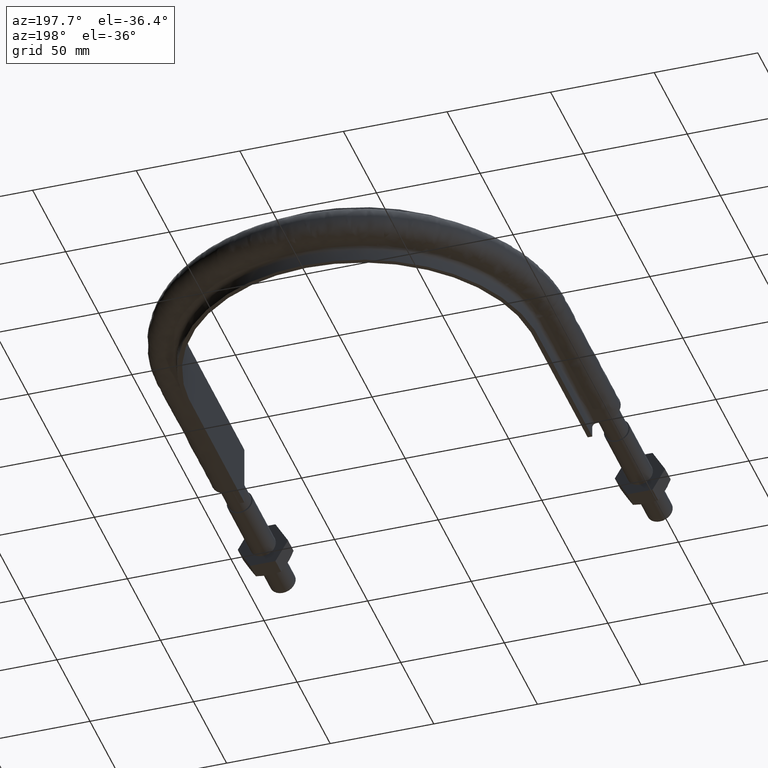
[diagram: clean part render]
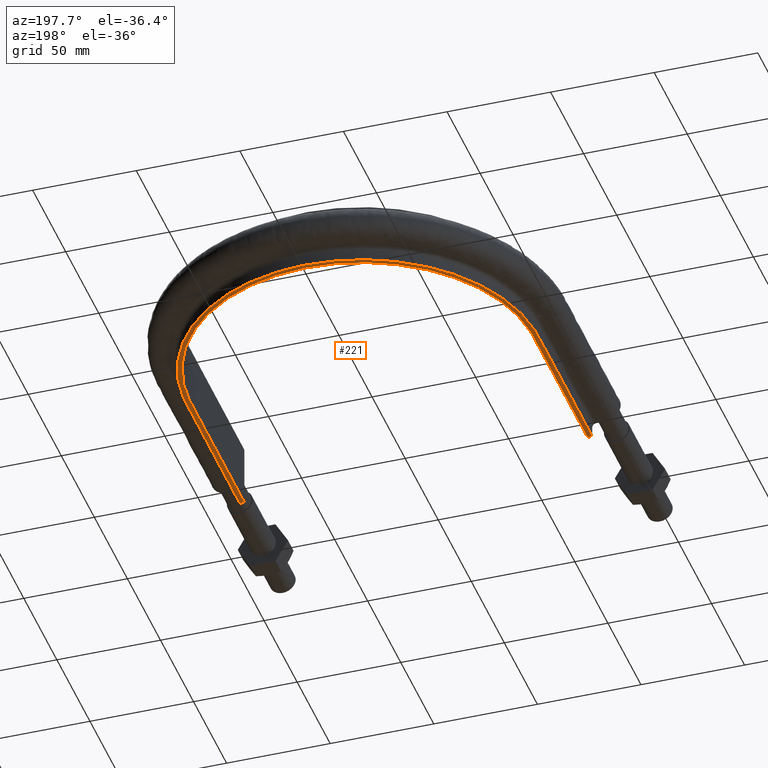
[diagram: same view with one face highlighted and labeled with its STEP entity id]
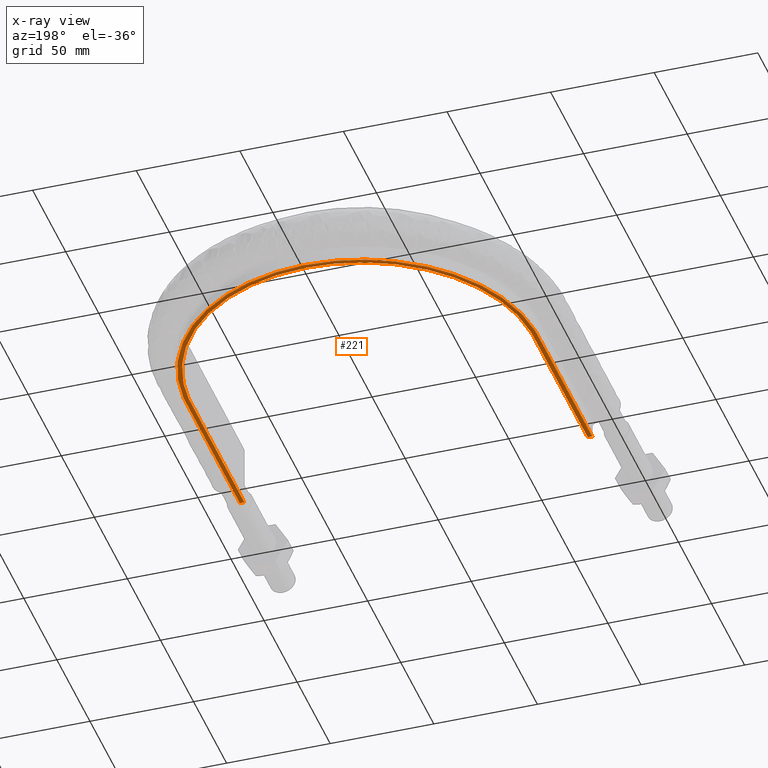
[diagram: x-ray of the same camera — body ghosted, the highlighted face saturated]
A machine part, auxiliary view. The second image highlights one B-rep face of the part: STEP entity #221.
The next image is the same camera in x-ray: the body ghosted, the highlighted face saturated — about 0% of this face is hidden behind the body in this view.
In plain terms, the highlighted planar face has unit normal (0, 0, 1).
Its self-contained STEP definition (entity closure, byte-faithful):
#221 = ADVANCED_FACE( '', ( #266 ), #267, .F. );
#266 = FACE_OUTER_BOUND( '', #368, .T. );
#267 = PLANE( '', #369 );
#368 = EDGE_LOOP( '', ( #1379, #1380, #1381, #1382 ) );
#369 = AXIS2_PLACEMENT_3D( '', #1383, #1384, #1385 );
#1379 = ORIENTED_EDGE( '', *, *, #1663, .F. );
#1380 = ORIENTED_EDGE( '', *, *, #1656, .F. );
#1381 = ORIENTED_EDGE( '', *, *, #1664, .F. );
#1382 = ORIENTED_EDGE( '', *, *, #1659, .F. );
#1383 = CARTESIAN_POINT( '', ( 150.000000000000, 383.500000000000, -15.0000000000000 ) );
#1384 = DIRECTION( '', ( 0.000000000000000, 0.000000000000000, 1.00000000000000 ) );
#1385 = DIRECTION( '', ( 1.00000000000000, 0.000000000000000, 0.000000000000000 ) );
#1656 = EDGE_CURVE( '', #1740, #1735, #1742, .T. );
#1659 = EDGE_CURVE( '', #1745, #1748, #1749, .T. );
#1663 = EDGE_CURVE( '', #1735, #1745, #1755, .T. );
#1664 = EDGE_CURVE( '', #1748, #1740, #1756, .T. );
#1735 = VERTEX_POINT( '', #1883 );
#1740 = VERTEX_POINT( '', #1890 );
#1742 = LINE( '', #1922, #1923 );
#1745 = VERTEX_POINT( '', #1936 );
#1748 = VERTEX_POINT( '', #1940 );
#1749 = LINE( '', #1941, #1942 );
#1755 = B_SPLINE_CURVE_WITH_KNOTS( '', 3, ( #1989, #1990, #1991, #1992, #1993, #1994, #1995, #1996, #1997, #1998, #1999, #2000, #2001, #2002, #2003, #2004, #2005 ), .UNSPECIFIED., .F., .F., ( 4, 3, 1, 1, 1, 1, 1, 1, 1, 3, 4 ), ( -10.0000000000000, -9.00000000000000, -8.00000000000000, -7.00000000000000, -6.00000000000000, -5.00000000000000, -4.00000000000000, -3.00000000000000, -2.00000000000000, -1.00000000000000, 0.000000000000000 ), .UNSPECIFIED. );
#1756 = B_SPLINE_CURVE_WITH_KNOTS( '', 3, ( #2006, #2007, #2008, #2009, #2010, #2011, #2012, #2013, #2014, #2015, #2016, #2017, #2018, #2019, #2020, #2021, #2022 ), .UNSPECIFIED., .F., .F., ( 4, 3, 1, 1, 1, 1, 1, 1, 1, 3, 4 ), ( 0.000000000000000, 1.00000000000000, 2.00000000000000, 3.00000000000000, 4.00000000000000, 5.00000000000000, 6.00000000000000, 7.00000000000000, 8.00000000000000, 9.00000000000000, 10.0000000000000 ), .UNSPECIFIED. );
#1883 = CARTESIAN_POINT( '', ( -82.8499999999999, 83.5000000000003, -15.0000000000000 ) );
#1890 = CARTESIAN_POINT( '', ( -85.0499999999999, 83.5000000000003, -15.0000000000000 ) );
#1922 = CARTESIAN_POINT( '', ( -150.000000000000, 83.5000000000003, -15.0000000000000 ) );
#1923 = VECTOR( '', #2387, 1000.00000000000 );
#1936 = CARTESIAN_POINT( '', ( 82.8500000000000, 83.5000000000000, -15.0000000000000 ) );
#1940 = CARTESIAN_POINT( '', ( 85.0500000000002, 83.5000000000003, -15.0000000000000 ) );
#1941 = CARTESIAN_POINT( '', ( -150.000000000000, 83.5000000000003, -15.0000000000000 ) );
#1942 = VECTOR( '', #2389, 1000.00000000000 );
#1989 = CARTESIAN_POINT( '', ( -82.8500000000000, 83.5000000000001, -15.0000000000000 ) );
#1990 = CARTESIAN_POINT( '', ( -82.8500000000000, 110.716666666667, -15.0000000000000 ) );
#1991 = CARTESIAN_POINT( '', ( -82.8500000000000, 137.933333333333, -15.0000000000000 ) );
#1992 = CARTESIAN_POINT( '', ( -82.8500000000000, 165.150000000000, -15.0000000000000 ) );
#1993 = CARTESIAN_POINT( '', ( -82.8500000000000, 175.979512005492, -15.0000000000000 ) );
#1994 = CARTESIAN_POINT( '', ( -78.5361555605724, 197.687272457852, -15.0000000000000 ) );
#1995 = CARTESIAN_POINT( '', ( -60.1089711493570, 225.257212617967, -15.0000000000000 ) );
#1996 = CARTESIAN_POINT( '', ( -32.5307407698323, 243.686657998112, -15.0000000000000 ) );
#1997 = CARTESIAN_POINT( '', ( 5.83899204915099E-014, 250.156671000944, -15.0000000000000 ) );
#1998 = CARTESIAN_POINT( '', ( 32.5307407698323, 243.686657998112, -15.0000000000000 ) );
#1999 = CARTESIAN_POINT( '', ( 60.1089711493571, 225.257212617967, -15.0000000000000 ) );
#2000 = CARTESIAN_POINT( '', ( 78.5361555605725, 197.687272457852, -15.0000000000000 ) );
#2001 = CARTESIAN_POINT( '', ( 82.8500000000000, 175.979512005492, -15.0000000000000 ) );
#2002 = CARTESIAN_POINT( '', ( 82.8500000000000, 165.150000000000, -15.0000000000000 ) );
#2003 = CARTESIAN_POINT( '', ( 82.8500000000000, 137.933333333333, -15.0000000000000 ) );
#2004 = CARTESIAN_POINT( '', ( 82.8500000000000, 110.716666666667, -15.0000000000000 ) );
#2005 = CARTESIAN_POINT( '', ( 82.8500000000000, 83.5000000000000, -15.0000000000000 ) );
#2006 = CARTESIAN_POINT( '', ( 85.0500000000000, 83.5000000000000, -15.0000000000000 ) );
#2007 = CARTESIAN_POINT( '', ( 85.0500000000000, 110.716666666667, -15.0000000000000 ) );
#2008 = CARTESIAN_POINT( '', ( 85.0500000000000, 137.933333333333, -15.0000000000000 ) );
#2009 = CARTESIAN_POINT( '', ( 85.0500000000000, 165.150000000000, -15.0000000000000 ) );
#2010 = CARTESIAN_POINT( '', ( 85.0500000000000, 176.271250144316, -15.0000000000000 ) );
#2011 = CARTESIAN_POINT( '', ( 80.6216056780530, 198.549331025117, -15.0000000000000 ) );
#2012 = CARTESIAN_POINT( '', ( 61.7051055673243, 226.853821731524, -15.0000000000000 ) );
#2013 = CARTESIAN_POINT( '', ( 33.3945624921453, 245.771972488282, -15.0000000000000 ) );
#2014 = CARTESIAN_POINT( '', ( 6.21358030715059E-014, 252.414013755859, -15.0000000000000 ) );
#2015 = CARTESIAN_POINT( '', ( -33.3945624921452, 245.771972488282, -15.0000000000000 ) );
#2016 = CARTESIAN_POINT( '', ( -61.7051055673243, 226.853821731524, -15.0000000000000 ) );
#2017 = CARTESIAN_POINT( '', ( -80.6216056780529, 198.549331025117, -15.0000000000000 ) );
#2018 = CARTESIAN_POINT( '', ( -85.0499999999999, 176.271250144316, -15.0000000000000 ) );
#2019 = CARTESIAN_POINT( '', ( -85.0500000000000, 165.150000000000, -15.0000000000000 ) );
#2020 = CARTESIAN_POINT( '', ( -85.0499999999999, 137.933333333333, -15.0000000000000 ) );
#2021 = CARTESIAN_POINT( '', ( -85.0499999999999, 110.716666666667, -15.0000000000000 ) );
#2022 = CARTESIAN_POINT( '', ( -85.0499999999999, 83.5000000000001, -15.0000000000000 ) );
#2387 = DIRECTION( '', ( 1.00000000000000, -1.22460635382238E-016, 0.000000000000000 ) );
#2389 = DIRECTION( '', ( 1.00000000000000, -1.22460635382238E-016, 0.000000000000000 ) );